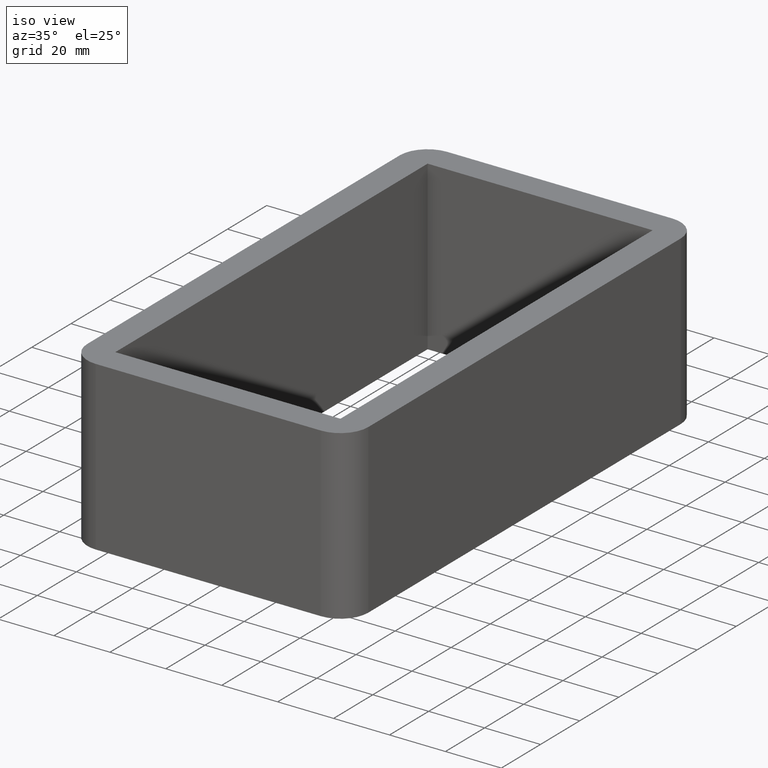
[diagram: clean part render]
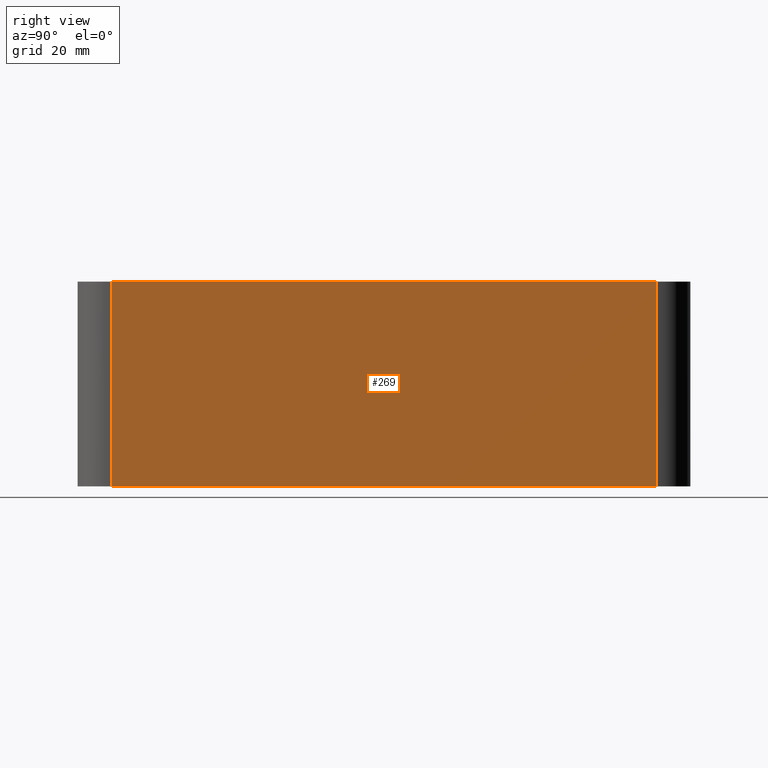
[diagram: tour spotlight — one face highlighted and labeled with its STEP entity id]
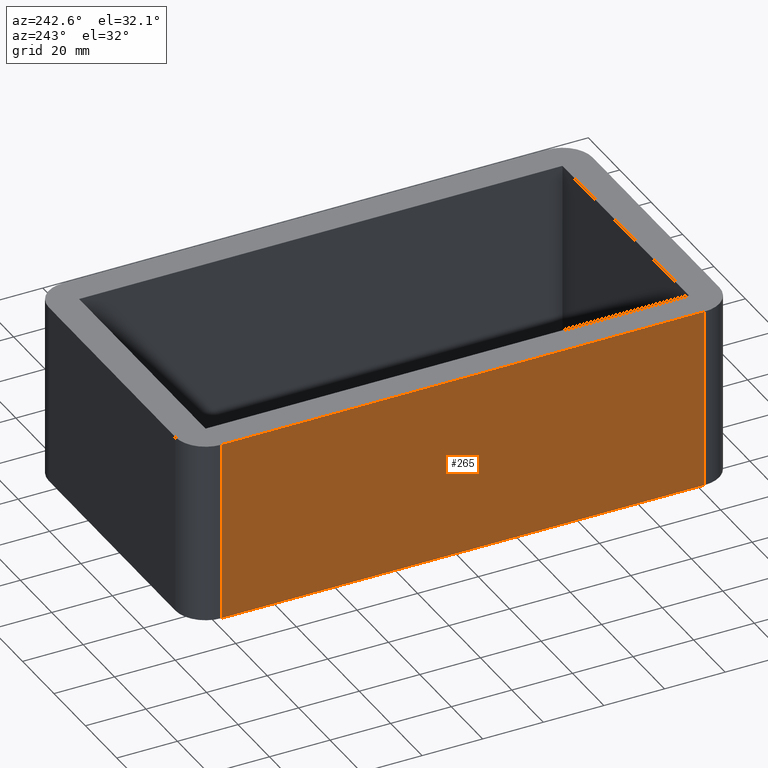
[diagram: tour spotlight — one face highlighted and labeled with its STEP entity id]
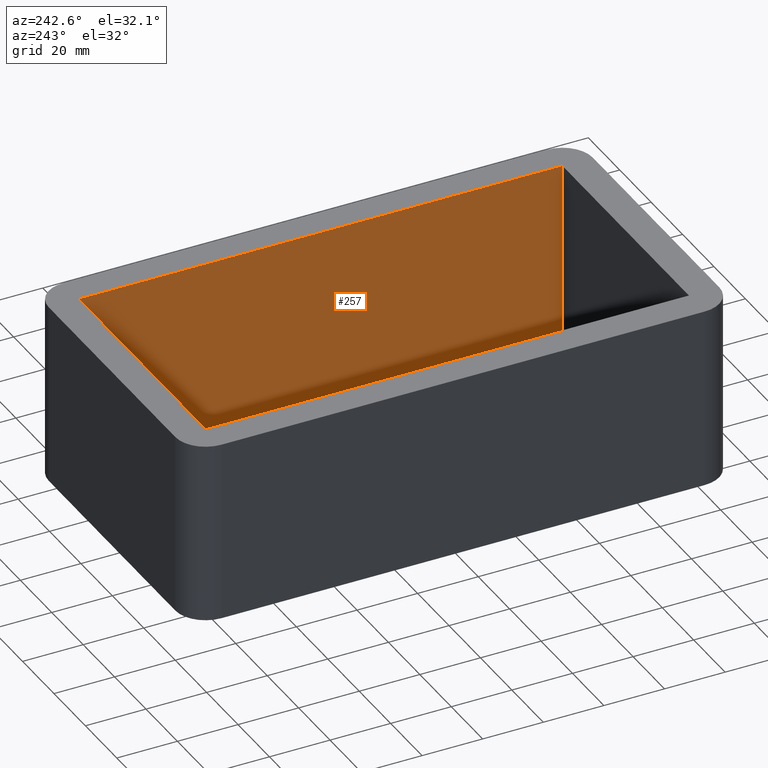
[diagram: tour spotlight — one face highlighted and labeled with its STEP entity id]
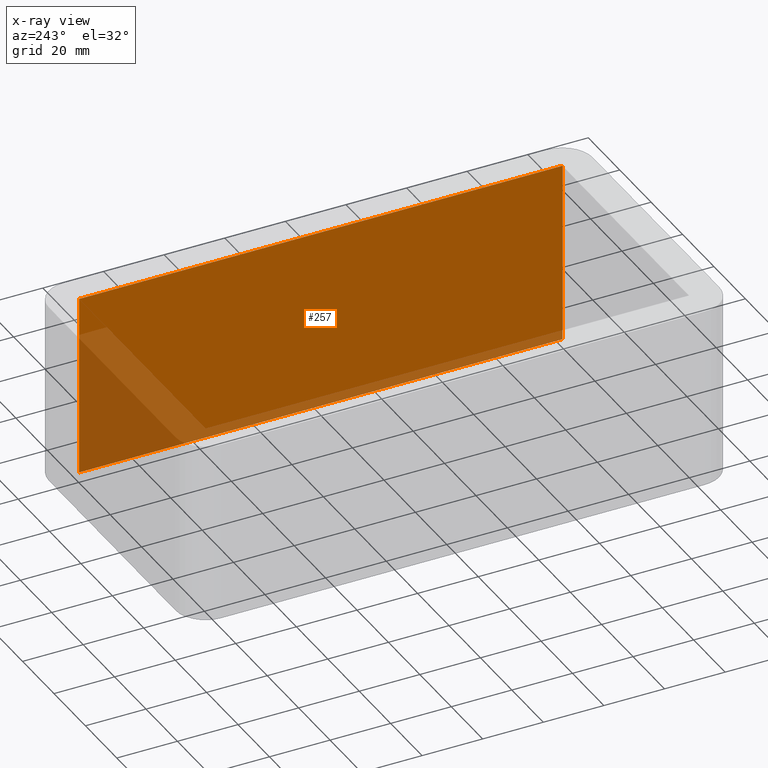
[diagram: x-ray of the same camera — body ghosted, this tour face saturated]
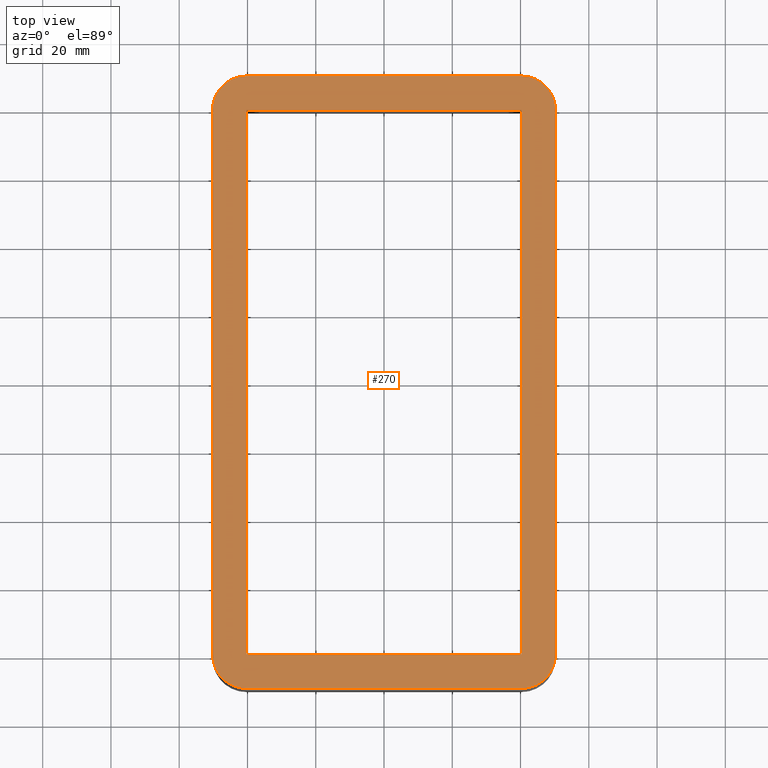
[diagram: tour spotlight — one face highlighted and labeled with its STEP entity id]
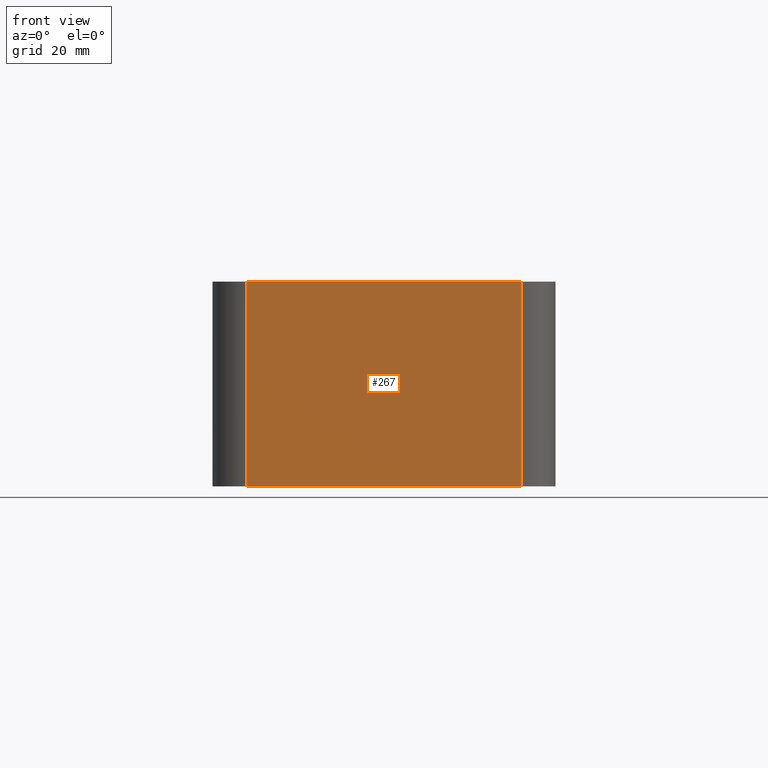
[diagram: tour spotlight — one face highlighted and labeled with its STEP entity id]
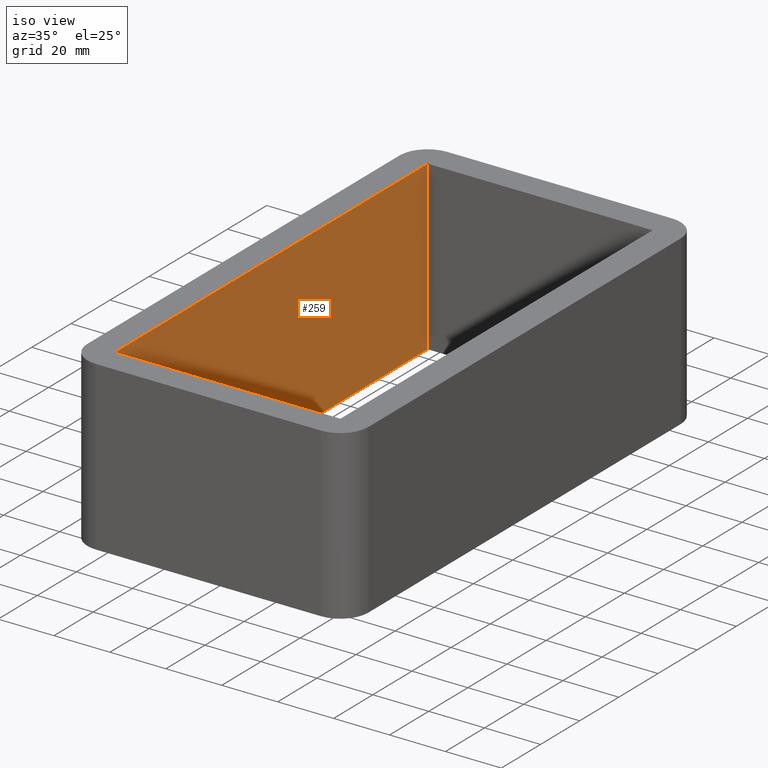
[diagram: tour spotlight — one face highlighted and labeled with its STEP entity id]
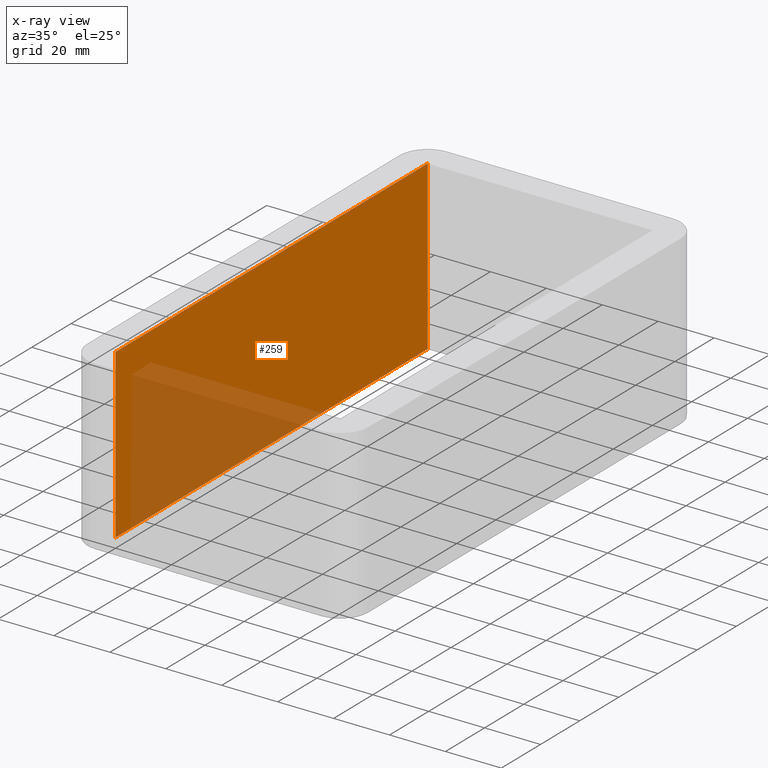
[diagram: x-ray of the same camera — body ghosted, this tour face saturated]
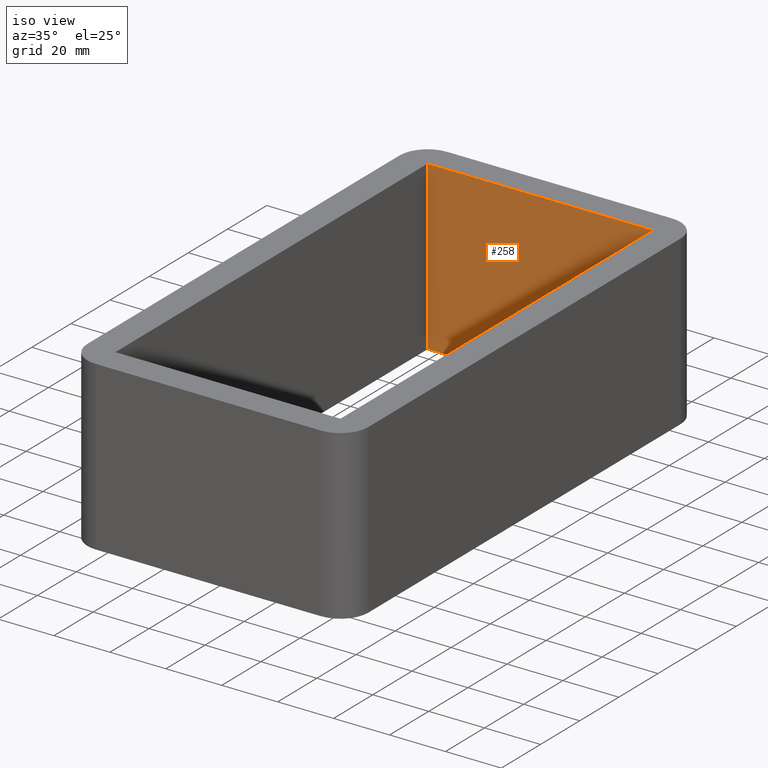
[diagram: tour spotlight — one face highlighted and labeled with its STEP entity id]
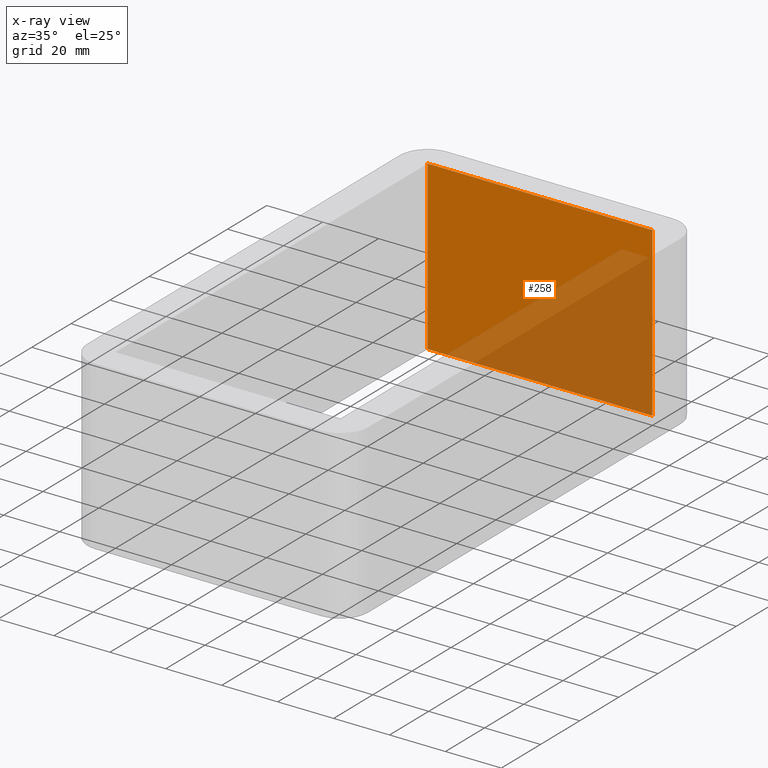
[diagram: x-ray of the same camera — body ghosted, this tour face saturated]
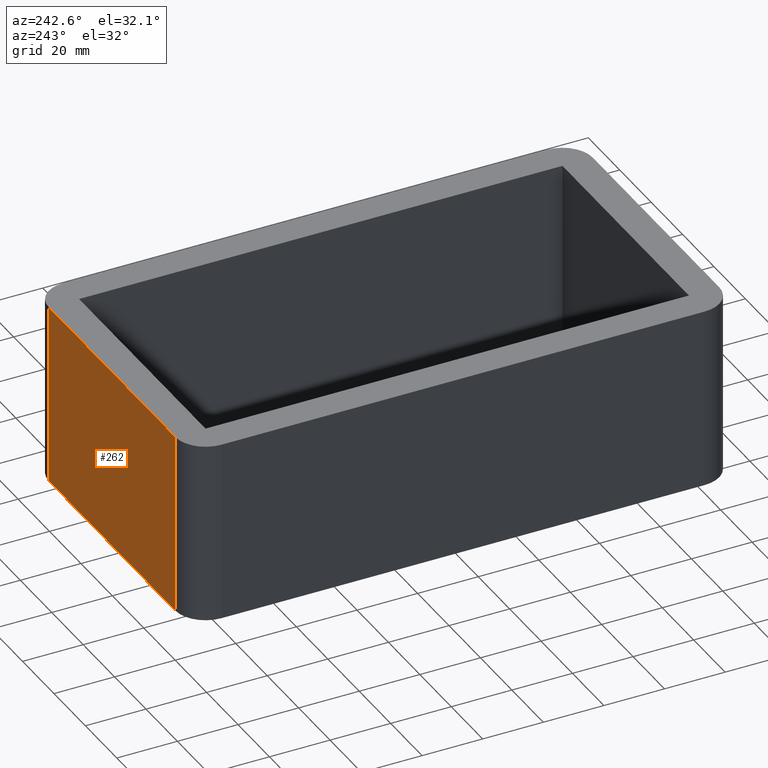
[diagram: tour spotlight — one face highlighted and labeled with its STEP entity id]
A machine part: a face-by-face anatomy tour. The part has 14 B-rep faces; the first image is the clean iso view, then the 8 largest visible faces are spotlighted one at a time (largest first), each with its STEP entity span.

Face 1 — right view, entity #269. In plain terms, the highlighted planar face has unit normal (1, 0, 0).
Definition (entity closure, byte-faithful):
#41=FACE_OUTER_BOUND('',#56,.T.);
#56=EDGE_LOOP('',(#231,#232,#233,#234));
#72=LINE('',#420,#100);
#76=LINE('',#429,#104);
#85=LINE('',#457,#113);
#86=LINE('',#460,#114);
#100=VECTOR('',#342,10.);
#104=VECTOR('',#350,10.);
#113=VECTOR('',#379,10.);
#114=VECTOR('',#384,10.);
#123=VERTEX_POINT('',#413);
#126=VERTEX_POINT('',#418);
#129=VERTEX_POINT('',#428);
#138=VERTEX_POINT('',#456);
#154=EDGE_CURVE('',#126,#123,#72,.T.);
#158=EDGE_CURVE('',#123,#129,#76,.T.);
#172=EDGE_CURVE('',#129,#138,#85,.T.);
#174=EDGE_CURVE('',#138,#126,#86,.T.);
#231=ORIENTED_EDGE('',*,*,#154,.F.);
#232=ORIENTED_EDGE('',*,*,#174,.F.);
#233=ORIENTED_EDGE('',*,*,#172,.F.);
#234=ORIENTED_EDGE('',*,*,#158,.F.);
#255=PLANE('',#311);
#269=ADVANCED_FACE('',(#41),#255,.T.);
#311=AXIS2_PLACEMENT_3D('',#459,#382,#383);
#342=DIRECTION('',(0.,0.,-1.));
#350=DIRECTION('',(0.,-1.,0.));
#379=DIRECTION('',(0.,0.,1.));
#382=DIRECTION('center_axis',(1.,0.,0.));
#383=DIRECTION('ref_axis',(0.,-1.,0.));
#384=DIRECTION('',(0.,1.,0.));
#413=CARTESIAN_POINT('',(50.2500000000001,79.7500000000002,-60.));
#418=CARTESIAN_POINT('',(50.2500000000001,79.7500000000002,0.));
#420=CARTESIAN_POINT('',(50.2500000000001,79.7500000000002,0.));
#428=CARTESIAN_POINT('',(50.2500000000001,-79.7499999999999,-60.));
#429=CARTESIAN_POINT('',(50.2500000000001,-89.7499999999999,-60.));
#456=CARTESIAN_POINT('',(50.2500000000001,-79.7499999999999,0.));
#457=CARTESIAN_POINT('',(50.2500000000001,-79.7499999999999,0.));
#459=CARTESIAN_POINT('Origin',(50.2500000000001,89.7500000000002,0.));
#460=CARTESIAN_POINT('',(50.2500000000001,-89.7499999999999,0.));

Face 2 — auxiliary view, entity #265. In plain terms, the highlighted planar face has unit normal (-1, 0, 0).
Definition (entity closure, byte-faithful):
#37=FACE_OUTER_BOUND('',#52,.T.);
#52=EDGE_LOOP('',(#215,#216,#217,#218));
#78=LINE('',#437,#106);
#79=LINE('',#441,#107);
#80=LINE('',#445,#108);
#81=LINE('',#446,#109);
#106=VECTOR('',#356,10.);
#107=VECTOR('',#361,10.);
#108=VECTOR('',#366,10.);
#109=VECTOR('',#367,10.);
#132=VERTEX_POINT('',#434);
#133=VERTEX_POINT('',#436);
#134=VERTEX_POINT('',#440);
#135=VERTEX_POINT('',#444);
#162=EDGE_CURVE('',#132,#133,#78,.T.);
#164=EDGE_CURVE('',#133,#134,#79,.T.);
#166=EDGE_CURVE('',#135,#132,#80,.T.);
#167=EDGE_CURVE('',#134,#135,#81,.T.);
#215=ORIENTED_EDGE('',*,*,#164,.F.);
#216=ORIENTED_EDGE('',*,*,#162,.F.);
#217=ORIENTED_EDGE('',*,*,#166,.F.);
#218=ORIENTED_EDGE('',*,*,#167,.F.);
#253=PLANE('',#305);
#265=ADVANCED_FACE('',(#37),#253,.T.);
#305=AXIS2_PLACEMENT_3D('',#443,#364,#365);
#356=DIRECTION('',(0.,1.,0.));
#361=DIRECTION('',(0.,0.,1.));
#364=DIRECTION('center_axis',(-1.,0.,0.));
#365=DIRECTION('ref_axis',(0.,1.,0.));
#366=DIRECTION('',(0.,0.,-1.));
#367=DIRECTION('',(0.,-1.,0.));
#434=CARTESIAN_POINT('',(-50.2499999999998,-79.7499999999999,-60.));
#436=CARTESIAN_POINT('',(-50.2499999999998,79.7500000000002,-60.));
#437=CARTESIAN_POINT('',(-50.2499999999998,89.7500000000002,-60.));
#440=CARTESIAN_POINT('',(-50.2499999999998,79.7500000000002,0.));
#441=CARTESIAN_POINT('',(-50.2499999999998,79.7500000000002,0.));
#443=CARTESIAN_POINT('Origin',(-50.2499999999998,-89.7499999999999,0.));
#444=CARTESIAN_POINT('',(-50.2499999999998,-79.7499999999999,0.));
#445=CARTESIAN_POINT('',(-50.2499999999998,-79.7499999999999,0.));
#446=CARTESIAN_POINT('',(-50.2499999999998,89.7500000000002,0.));

Face 3 — auxiliary view, entity #257. An x-ray twin of the same camera follows (body ghosted, this face saturated) — the face is partly hidden behind the body. In plain terms, the highlighted planar face has unit normal (1, 0, 0).
Definition (entity closure, byte-faithful):
#29=FACE_OUTER_BOUND('',#43,.T.);
#43=EDGE_LOOP('',(#175,#176,#177,#178));
#59=LINE('',#391,#87);
#60=LINE('',#393,#88);
#61=LINE('',#395,#89);
#62=LINE('',#396,#90);
#87=VECTOR('',#317,10.);
#88=VECTOR('',#318,10.);
#89=VECTOR('',#319,10.);
#90=VECTOR('',#320,10.);
#115=VERTEX_POINT('',#389);
#116=VERTEX_POINT('',#390);
#117=VERTEX_POINT('',#392);
#118=VERTEX_POINT('',#394);
#139=EDGE_CURVE('',#115,#116,#59,.T.);
#140=EDGE_CURVE('',#117,#115,#60,.T.);
#141=EDGE_CURVE('',#118,#117,#61,.T.);
#142=EDGE_CURVE('',#118,#116,#62,.T.);
#175=ORIENTED_EDGE('',*,*,#139,.F.);
#176=ORIENTED_EDGE('',*,*,#140,.F.);
#177=ORIENTED_EDGE('',*,*,#141,.F.);
#178=ORIENTED_EDGE('',*,*,#142,.T.);
#247=PLANE('',#291);
#257=ADVANCED_FACE('',(#29),#247,.F.);
#291=AXIS2_PLACEMENT_3D('',#388,#315,#316);
#315=DIRECTION('center_axis',(1.,5.56851673793182E-17,0.));
#316=DIRECTION('ref_axis',(5.56851673793182E-17,-1.,0.));
#317=DIRECTION('',(-5.56851673793182E-17,1.,0.));
#318=DIRECTION('',(0.,0.,-1.));
#319=DIRECTION('',(5.56851673793182E-17,-1.,0.));
#320=DIRECTION('',(0.,0.,-1.));
#388=CARTESIAN_POINT('Origin',(40.2500000000036,79.7499999999909,0.));
#389=CARTESIAN_POINT('',(40.2500000000036,-79.750000000009,-60.));
#390=CARTESIAN_POINT('',(40.2500000000036,79.7499999999909,-60.));
#391=CARTESIAN_POINT('',(40.2500000000036,39.8749999999955,-60.));
#392=CARTESIAN_POINT('',(40.2500000000036,-79.750000000009,0.));
#393=CARTESIAN_POINT('',(40.2500000000036,-79.750000000009,0.));
#394=CARTESIAN_POINT('',(40.2500000000036,79.7499999999909,0.));
#395=CARTESIAN_POINT('',(40.2500000000036,39.8749999999955,0.));
#396=CARTESIAN_POINT('',(40.2500000000036,79.7499999999909,0.));

Face 4 — top view, entity #270. In plain terms, the highlighted planar face has unit normal (0, 0, 1).
Definition (entity closure, byte-faithful):
#16=FACE_BOUND('',#58,.T.);
#18=CIRCLE('',#297,10.);
#22=CIRCLE('',#304,10.);
#23=CIRCLE('',#307,10.);
#24=CIRCLE('',#310,10.);
#42=FACE_OUTER_BOUND('',#57,.T.);
#57=EDGE_LOOP('',(#235,#236,#237,#238,#239,#240,#241,#242));
#58=EDGE_LOOP('',(#243,#244,#245,#246));
#61=LINE('',#395,#89);
#64=LINE('',#401,#92);
#67=LINE('',#407,#95);
#70=LINE('',#411,#98);
#75=LINE('',#426,#103);
#81=LINE('',#446,#109);
#84=LINE('',#454,#112);
#86=LINE('',#460,#114);
#89=VECTOR('',#319,10.);
#92=VECTOR('',#324,10.);
#95=VECTOR('',#329,10.);
#98=VECTOR('',#334,10.);
#103=VECTOR('',#347,10.);
#109=VECTOR('',#367,10.);
#112=VECTOR('',#376,10.);
#114=VECTOR('',#384,10.);
#117=VERTEX_POINT('',#392);
#118=VERTEX_POINT('',#394);
#120=VERTEX_POINT('',#400);
#122=VERTEX_POINT('',#406);
#125=VERTEX_POINT('',#416);
#126=VERTEX_POINT('',#418);
#128=VERTEX_POINT('',#424);
#134=VERTEX_POINT('',#440);
#135=VERTEX_POINT('',#444);
#136=VERTEX_POINT('',#448);
#137=VERTEX_POINT('',#452);
#138=VERTEX_POINT('',#456);
#141=EDGE_CURVE('',#118,#117,#61,.T.);
#144=EDGE_CURVE('',#120,#118,#64,.T.);
#147=EDGE_CURVE('',#122,#120,#67,.T.);
#150=EDGE_CURVE('',#117,#122,#70,.T.);
#153=EDGE_CURVE('',#125,#126,#18,.T.);
#157=EDGE_CURVE('',#125,#128,#75,.T.);
#165=EDGE_CURVE('',#134,#128,#22,.T.);
#167=EDGE_CURVE('',#134,#135,#81,.T.);
#169=EDGE_CURVE('',#136,#135,#23,.T.);
#171=EDGE_CURVE('',#136,#137,#84,.T.);
#173=EDGE_CURVE('',#138,#137,#24,.T.);
#174=EDGE_CURVE('',#138,#126,#86,.T.);
#235=ORIENTED_EDGE('',*,*,#153,.F.);
#236=ORIENTED_EDGE('',*,*,#157,.T.);
#237=ORIENTED_EDGE('',*,*,#165,.F.);
#238=ORIENTED_EDGE('',*,*,#167,.T.);
#239=ORIENTED_EDGE('',*,*,#169,.F.);
#240=ORIENTED_EDGE('',*,*,#171,.T.);
#241=ORIENTED_EDGE('',*,*,#173,.F.);
#242=ORIENTED_EDGE('',*,*,#174,.T.);
#243=ORIENTED_EDGE('',*,*,#147,.T.);
#244=ORIENTED_EDGE('',*,*,#144,.T.);
#245=ORIENTED_EDGE('',*,*,#141,.T.);
#246=ORIENTED_EDGE('',*,*,#150,.T.);
#256=PLANE('',#312);
#270=ADVANCED_FACE('',(#42,#16),#256,.T.);
#297=AXIS2_PLACEMENT_3D('',#419,#340,#341);
#304=AXIS2_PLACEMENT_3D('',#442,#362,#363);
#307=AXIS2_PLACEMENT_3D('',#450,#371,#372);
#310=AXIS2_PLACEMENT_3D('',#458,#380,#381);
#312=AXIS2_PLACEMENT_3D('',#461,#385,#386);
#319=DIRECTION('',(5.56851673793182E-17,-1.,0.));
#324=DIRECTION('',(1.,0.,0.));
#329=DIRECTION('',(-2.01023454239339E-14,1.,0.));
#334=DIRECTION('',(-1.,-4.4133089177646E-16,0.));
#340=DIRECTION('center_axis',(0.,0.,-1.));
#341=DIRECTION('ref_axis',(0.707106781186547,0.707106781186547,0.));
#347=DIRECTION('',(-1.,0.,0.));
#362=DIRECTION('center_axis',(0.,0.,-1.));
#363=DIRECTION('ref_axis',(-0.707106781186547,0.707106781186547,0.));
#367=DIRECTION('',(0.,-1.,0.));
#371=DIRECTION('center_axis',(0.,0.,-1.));
#372=DIRECTION('ref_axis',(-0.707106781186547,-0.707106781186547,0.));
#376=DIRECTION('',(1.,0.,0.));
#380=DIRECTION('center_axis',(0.,0.,-1.));
#381=DIRECTION('ref_axis',(0.707106781186547,-0.707106781186547,0.));
#384=DIRECTION('',(0.,1.,0.));
#385=DIRECTION('center_axis',(0.,0.,1.));
#386=DIRECTION('ref_axis',(1.,0.,0.));
#392=CARTESIAN_POINT('',(40.2500000000036,-79.750000000009,0.));
#394=CARTESIAN_POINT('',(40.2500000000036,79.7499999999909,0.));
#395=CARTESIAN_POINT('',(40.2500000000036,39.8749999999955,0.));
#400=CARTESIAN_POINT('',(-40.2499999999996,79.7499999999909,0.));
#401=CARTESIAN_POINT('',(-20.1249999999997,79.7499999999909,0.));
#406=CARTESIAN_POINT('',(-40.2499999999964,-79.7500000000091,0.));
#407=CARTESIAN_POINT('',(-40.2499999999972,-39.8750000000049,0.));
#411=CARTESIAN_POINT('',(20.1250000000019,-79.7500000000091,0.));
#416=CARTESIAN_POINT('',(40.2500000000001,89.7500000000002,0.));
#418=CARTESIAN_POINT('',(50.2500000000001,79.7500000000002,0.));
#419=CARTESIAN_POINT('Origin',(40.2500000000001,79.7500000000002,0.));
#424=CARTESIAN_POINT('',(-40.2499999999998,89.7500000000002,0.));
#426=CARTESIAN_POINT('',(50.2500000000001,89.7500000000002,0.));
#440=CARTESIAN_POINT('',(-50.2499999999998,79.7500000000002,0.));
#442=CARTESIAN_POINT('Origin',(-40.2499999999998,79.7500000000002,0.));
#444=CARTESIAN_POINT('',(-50.2499999999998,-79.7499999999999,0.));
#446=CARTESIAN_POINT('',(-50.2499999999998,89.7500000000002,0.));
#448=CARTESIAN_POINT('',(-40.2499999999998,-89.7499999999999,0.));
#450=CARTESIAN_POINT('Origin',(-40.2499999999998,-79.7499999999999,0.));
#452=CARTESIAN_POINT('',(40.2500000000001,-89.7499999999999,0.));
#454=CARTESIAN_POINT('',(-50.2499999999998,-89.7499999999999,0.));
#456=CARTESIAN_POINT('',(50.2500000000001,-79.7499999999999,0.));
#458=CARTESIAN_POINT('Origin',(40.2500000000001,-79.7499999999999,0.));
#460=CARTESIAN_POINT('',(50.2500000000001,-89.7499999999999,0.));
#461=CARTESIAN_POINT('Origin',(1.40839720838163E-13,1.40712838206777E-13,
0.));

Face 5 — front view, entity #267. In plain terms, the highlighted planar face has unit normal (0, -1, 0).
Definition (entity closure, byte-faithful):
#39=FACE_OUTER_BOUND('',#54,.T.);
#54=EDGE_LOOP('',(#223,#224,#225,#226));
#77=LINE('',#433,#105);
#82=LINE('',#449,#110);
#83=LINE('',#453,#111);
#84=LINE('',#454,#112);
#105=VECTOR('',#353,10.);
#110=VECTOR('',#370,10.);
#111=VECTOR('',#375,10.);
#112=VECTOR('',#376,10.);
#130=VERTEX_POINT('',#430);
#131=VERTEX_POINT('',#432);
#136=VERTEX_POINT('',#448);
#137=VERTEX_POINT('',#452);
#160=EDGE_CURVE('',#130,#131,#77,.T.);
#168=EDGE_CURVE('',#131,#136,#82,.T.);
#170=EDGE_CURVE('',#137,#130,#83,.T.);
#171=EDGE_CURVE('',#136,#137,#84,.T.);
#223=ORIENTED_EDGE('',*,*,#168,.F.);
#224=ORIENTED_EDGE('',*,*,#160,.F.);
#225=ORIENTED_EDGE('',*,*,#170,.F.);
#226=ORIENTED_EDGE('',*,*,#171,.F.);
#254=PLANE('',#308);
#267=ADVANCED_FACE('',(#39),#254,.T.);
#308=AXIS2_PLACEMENT_3D('',#451,#373,#374);
#353=DIRECTION('',(-1.,0.,0.));
#370=DIRECTION('',(0.,0.,1.));
#373=DIRECTION('center_axis',(0.,-1.,0.));
#374=DIRECTION('ref_axis',(-1.,0.,0.));
#375=DIRECTION('',(0.,0.,-1.));
#376=DIRECTION('',(1.,0.,0.));
#430=CARTESIAN_POINT('',(40.2500000000001,-89.7499999999999,-60.));
#432=CARTESIAN_POINT('',(-40.2499999999998,-89.7499999999999,-60.));
#433=CARTESIAN_POINT('',(-50.2499999999998,-89.7499999999999,-60.));
#448=CARTESIAN_POINT('',(-40.2499999999998,-89.7499999999999,0.));
#449=CARTESIAN_POINT('',(-40.2499999999998,-89.7499999999999,0.));
#451=CARTESIAN_POINT('Origin',(50.2500000000001,-89.7499999999999,0.));
#452=CARTESIAN_POINT('',(40.2500000000001,-89.7499999999999,0.));
#453=CARTESIAN_POINT('',(40.2500000000001,-89.7499999999999,0.));
#454=CARTESIAN_POINT('',(-50.2499999999998,-89.7499999999999,0.));

Face 6 — iso view, entity #259. An x-ray twin of the same camera follows (body ghosted, this face saturated) — the face is partly hidden behind the body. In plain terms, the highlighted planar face has unit normal (-1, -0, 0).
Definition (entity closure, byte-faithful):
#31=FACE_OUTER_BOUND('',#45,.T.);
#45=EDGE_LOOP('',(#183,#184,#185,#186));
#65=LINE('',#402,#93);
#66=LINE('',#405,#94);
#67=LINE('',#407,#95);
#68=LINE('',#408,#96);
#93=VECTOR('',#325,10.);
#94=VECTOR('',#328,10.);
#95=VECTOR('',#329,10.);
#96=VECTOR('',#330,10.);
#119=VERTEX_POINT('',#398);
#120=VERTEX_POINT('',#400);
#121=VERTEX_POINT('',#404);
#122=VERTEX_POINT('',#406);
#145=EDGE_CURVE('',#120,#119,#65,.T.);
#146=EDGE_CURVE('',#119,#121,#66,.T.);
#147=EDGE_CURVE('',#122,#120,#67,.T.);
#148=EDGE_CURVE('',#122,#121,#68,.T.);
#183=ORIENTED_EDGE('',*,*,#146,.F.);
#184=ORIENTED_EDGE('',*,*,#145,.F.);
#185=ORIENTED_EDGE('',*,*,#147,.F.);
#186=ORIENTED_EDGE('',*,*,#148,.T.);
#249=PLANE('',#293);
#259=ADVANCED_FACE('',(#31),#249,.F.);
#293=AXIS2_PLACEMENT_3D('',#403,#326,#327);
#325=DIRECTION('',(0.,0.,-1.));
#326=DIRECTION('center_axis',(-1.,-2.01023454239339E-14,0.));
#327=DIRECTION('ref_axis',(-2.01023454239339E-14,1.,0.));
#328=DIRECTION('',(2.01023454239339E-14,-1.,0.));
#329=DIRECTION('',(-2.01023454239339E-14,1.,0.));
#330=DIRECTION('',(0.,0.,-1.));
#398=CARTESIAN_POINT('',(-40.2499999999996,79.7499999999909,-60.));
#400=CARTESIAN_POINT('',(-40.2499999999996,79.7499999999909,0.));
#402=CARTESIAN_POINT('',(-40.2499999999996,79.7499999999909,0.));
#403=CARTESIAN_POINT('Origin',(-40.2499999999964,-79.7500000000091,0.));
#404=CARTESIAN_POINT('',(-40.2499999999964,-79.7500000000091,-60.));
#405=CARTESIAN_POINT('',(-40.2499999999972,-39.8750000000049,-60.));
#406=CARTESIAN_POINT('',(-40.2499999999964,-79.7500000000091,0.));
#407=CARTESIAN_POINT('',(-40.2499999999972,-39.8750000000049,0.));
#408=CARTESIAN_POINT('',(-40.2499999999964,-79.7500000000091,0.));

Face 7 — iso view, entity #258. An x-ray twin of the same camera follows (body ghosted, this face saturated) — the face is partly hidden behind the body. In plain terms, the highlighted planar face has unit normal (0, 1, 0).
Definition (entity closure, byte-faithful):
#30=FACE_OUTER_BOUND('',#44,.T.);
#44=EDGE_LOOP('',(#179,#180,#181,#182));
#62=LINE('',#396,#90);
#63=LINE('',#399,#91);
#64=LINE('',#401,#92);
#65=LINE('',#402,#93);
#90=VECTOR('',#320,10.);
#91=VECTOR('',#323,10.);
#92=VECTOR('',#324,10.);
#93=VECTOR('',#325,10.);
#116=VERTEX_POINT('',#390);
#118=VERTEX_POINT('',#394);
#119=VERTEX_POINT('',#398);
#120=VERTEX_POINT('',#400);
#142=EDGE_CURVE('',#118,#116,#62,.T.);
#143=EDGE_CURVE('',#116,#119,#63,.T.);
#144=EDGE_CURVE('',#120,#118,#64,.T.);
#145=EDGE_CURVE('',#120,#119,#65,.T.);
#179=ORIENTED_EDGE('',*,*,#143,.F.);
#180=ORIENTED_EDGE('',*,*,#142,.F.);
#181=ORIENTED_EDGE('',*,*,#144,.F.);
#182=ORIENTED_EDGE('',*,*,#145,.T.);
#248=PLANE('',#292);
#258=ADVANCED_FACE('',(#30),#248,.F.);
#292=AXIS2_PLACEMENT_3D('',#397,#321,#322);
#320=DIRECTION('',(0.,0.,-1.));
#321=DIRECTION('center_axis',(0.,1.,0.));
#322=DIRECTION('ref_axis',(1.,0.,0.));
#323=DIRECTION('',(-1.,0.,0.));
#324=DIRECTION('',(1.,0.,0.));
#325=DIRECTION('',(0.,0.,-1.));
#390=CARTESIAN_POINT('',(40.2500000000036,79.7499999999909,-60.));
#394=CARTESIAN_POINT('',(40.2500000000036,79.7499999999909,0.));
#396=CARTESIAN_POINT('',(40.2500000000036,79.7499999999909,0.));
#397=CARTESIAN_POINT('Origin',(-40.2499999999996,79.7499999999909,0.));
#398=CARTESIAN_POINT('',(-40.2499999999996,79.7499999999909,-60.));
#399=CARTESIAN_POINT('',(-20.1249999999997,79.7499999999909,-60.));
#400=CARTESIAN_POINT('',(-40.2499999999996,79.7499999999909,0.));
#401=CARTESIAN_POINT('',(-20.1249999999997,79.7499999999909,0.));
#402=CARTESIAN_POINT('',(-40.2499999999996,79.7499999999909,0.));

Face 8 — auxiliary view, entity #262. In plain terms, the highlighted planar face has unit normal (0, 1, 0).
Definition (entity closure, byte-faithful):
#34=FACE_OUTER_BOUND('',#48,.T.);
#48=EDGE_LOOP('',(#195,#196,#197,#198));
#71=LINE('',#417,#99);
#73=LINE('',#423,#101);
#74=LINE('',#425,#102);
#75=LINE('',#426,#103);
#99=VECTOR('',#339,10.);
#101=VECTOR('',#345,10.);
#102=VECTOR('',#346,10.);
#103=VECTOR('',#347,10.);
#124=VERTEX_POINT('',#414);
#125=VERTEX_POINT('',#416);
#127=VERTEX_POINT('',#422);
#128=VERTEX_POINT('',#424);
#152=EDGE_CURVE('',#124,#125,#71,.T.);
#155=EDGE_CURVE('',#127,#124,#73,.T.);
#156=EDGE_CURVE('',#128,#127,#74,.T.);
#157=EDGE_CURVE('',#125,#128,#75,.T.);
#195=ORIENTED_EDGE('',*,*,#152,.F.);
#196=ORIENTED_EDGE('',*,*,#155,.F.);
#197=ORIENTED_EDGE('',*,*,#156,.F.);
#198=ORIENTED_EDGE('',*,*,#157,.F.);
#251=PLANE('',#298);
#262=ADVANCED_FACE('',(#34),#251,.T.);
#298=AXIS2_PLACEMENT_3D('',#421,#343,#344);
#339=DIRECTION('',(0.,0.,1.));
#343=DIRECTION('center_axis',(0.,1.,0.));
#344=DIRECTION('ref_axis',(1.,0.,0.));
#345=DIRECTION('',(1.,0.,0.));
#346=DIRECTION('',(0.,0.,-1.));
#347=DIRECTION('',(-1.,0.,0.));
#414=CARTESIAN_POINT('',(40.2500000000001,89.7500000000002,-60.));
#416=CARTESIAN_POINT('',(40.2500000000001,89.7500000000002,0.));
#417=CARTESIAN_POINT('',(40.2500000000001,89.7500000000002,0.));
#421=CARTESIAN_POINT('Origin',(-50.2499999999998,89.7500000000002,0.));
#422=CARTESIAN_POINT('',(-40.2499999999998,89.7500000000002,-60.));
#423=CARTESIAN_POINT('',(50.2500000000001,89.7500000000002,-60.));
#424=CARTESIAN_POINT('',(-40.2499999999998,89.7500000000002,0.));
#425=CARTESIAN_POINT('',(-40.2499999999998,89.7500000000002,0.));
#426=CARTESIAN_POINT('',(50.2500000000001,89.7500000000002,0.));